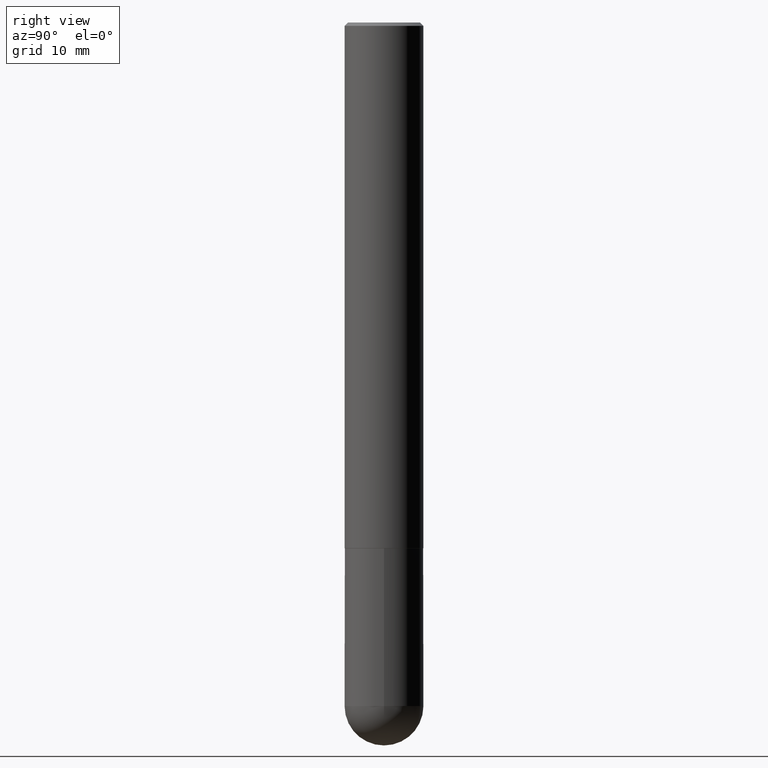
[diagram: clean part render]
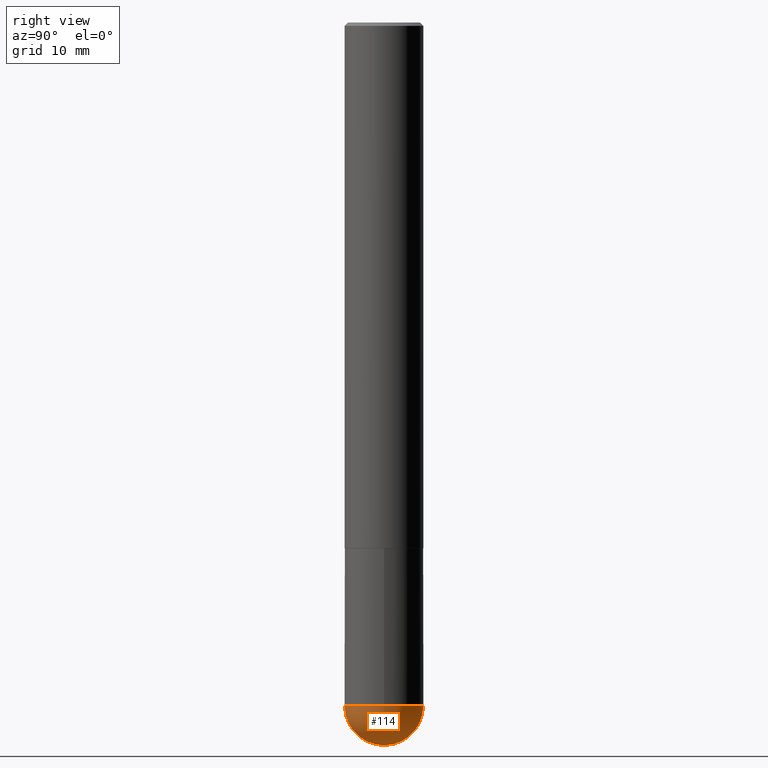
[diagram: same view with one face highlighted and labeled with its STEP entity id]
A machine part, right view. The second image highlights one B-rep face of the part: STEP entity #114.
In plain terms, the highlighted spherical surface has radius 5.9995 mm.
Its self-contained STEP definition (entity closure, byte-faithful):
#3 = CIRCLE ( 'NONE', #91, 0.2362000000000002709 ) ;
#4 = DIRECTION ( 'NONE',  ( 1.000000000000000000, -6.982962677686265133E-15, 0.000000000000000000 ) ) ;
#7 = CARTESIAN_POINT ( 'NONE',  ( 1.026957149490729443E-28, -1.558027752357013406E-14, -4.330700000000000216 ) ) ;
#22 = EDGE_LOOP ( 'NONE', ( #54, #410, #189, #105 ) ) ;
#54 = ORIENTED_EDGE ( 'NONE', *, *, #363, .F. ) ;
#91 = AXIS2_PLACEMENT_3D ( 'NONE', #328, #259, #111 ) ;
#105 = ORIENTED_EDGE ( 'NONE', *, *, #319, .F. ) ;
#111 = DIRECTION ( 'NONE',  ( -7.105427357601001070E-15, -1.000000000000000000, 0.000000000000000000 ) ) ;
#114 = ADVANCED_FACE ( 'NONE', ( #280 ), #310, .T. ) ;
#125 = VERTEX_POINT ( 'NONE', #316 ) ;
#127 = AXIS2_PLACEMENT_3D ( 'NONE', #139, #223, #334 ) ;
#139 = CARTESIAN_POINT ( 'NONE',  ( 9.681852249011155898E-29, -1.477005271003331337E-14, -4.094500000000000028 ) ) ;
#153 = AXIS2_PLACEMENT_3D ( 'NONE', #345, #377, #202 ) ;
#175 = CIRCLE ( 'NONE', #388, 0.2361999999999999933 ) ;
#178 = VERTEX_POINT ( 'NONE', #403 ) ;
#189 = ORIENTED_EDGE ( 'NONE', *, *, #336, .F. ) ;
#202 = DIRECTION ( 'NONE',  ( 6.982962677686265922E-15, 1.000000000000000000, 0.000000000000000000 ) ) ;
#210 = CIRCLE ( 'NONE', #373, 0.2361999999999999933 ) ;
#215 = VERTEX_POINT ( 'NONE', #374 ) ;
#223 = DIRECTION ( 'NONE',  ( -1.000000000000000000, 6.982962677686265922E-15, -4.883557194083112901E-29 ) ) ;
#259 = DIRECTION ( 'NONE',  ( -1.000000000000000000, 7.105427357601001070E-15, -4.926315508542082329E-29 ) ) ;
#280 = FACE_OUTER_BOUND ( 'NONE', #22, .T. ) ;
#288 = CARTESIAN_POINT ( 'NONE',  ( 1.001297202692504215E-28, -1.429587034189326149E-14, -4.094500000000000028 ) ) ;
#310 = SPHERICAL_SURFACE ( 'NONE', #127, 0.2362000000000002709 ) ;
#316 = CARTESIAN_POINT ( 'NONE',  ( 0.2361999999999999933, -1.429569576782631264E-14, -4.094500000000000028 ) ) ;
#319 = EDGE_CURVE ( 'NONE', #215, #125, #210, .T. ) ;
#321 = DIRECTION ( 'NONE',  ( -2.445468806185136597E-29, 3.491481338843145583E-15, 1.000000000000000000 ) ) ;
#327 = CARTESIAN_POINT ( 'NONE',  ( 1.001297202692504215E-28, -1.429587034189326149E-14, -4.094500000000000028 ) ) ;
#328 = CARTESIAN_POINT ( 'NONE',  ( 9.681852249011155898E-29, -1.477005271003331337E-14, -4.094500000000000028 ) ) ;
#334 = DIRECTION ( 'NONE',  ( 6.982962677686265922E-15, 1.000000000000000000, -4.626330217890364603E-15 ) ) ;
#336 = EDGE_CURVE ( 'NONE', #125, #178, #175, .T. ) ;
#343 = CIRCLE ( 'NONE', #153, 0.2362000000000002709 ) ;
#345 = CARTESIAN_POINT ( 'NONE',  ( 9.681852249011155898E-29, -1.477005271003331337E-14, -4.094500000000000028 ) ) ;
#353 = DIRECTION ( 'NONE',  ( 1.000000000000000000, -6.982962677686265133E-15, 0.000000000000000000 ) ) ;
#363 = EDGE_CURVE ( 'NONE', #409, #215, #3, .T. ) ;
#373 = AXIS2_PLACEMENT_3D ( 'NONE', #327, #379, #4 ) ;
#374 = CARTESIAN_POINT ( 'NONE',  ( -1.678301941865258773E-15, -0.2362000000000146760, -4.094499999999999140 ) ) ;
#377 = DIRECTION ( 'NONE',  ( 1.000000000000000000, -6.982962677686265922E-15, 4.883557194083112340E-29 ) ) ;
#379 = DIRECTION ( 'NONE',  ( -2.445468806185136597E-29, 3.491481338843145583E-15, 1.000000000000000000 ) ) ;
#383 = EDGE_CURVE ( 'NONE', #409, #178, #343, .T. ) ;
#388 = AXIS2_PLACEMENT_3D ( 'NONE', #288, #321, #353 ) ;
#403 = CARTESIAN_POINT ( 'NONE',  ( 1.649375784469595330E-15, 0.2361999999999855882, -4.094500000000001805 ) ) ;
#409 = VERTEX_POINT ( 'NONE', #7 ) ;
#410 = ORIENTED_EDGE ( 'NONE', *, *, #383, .T. ) ;